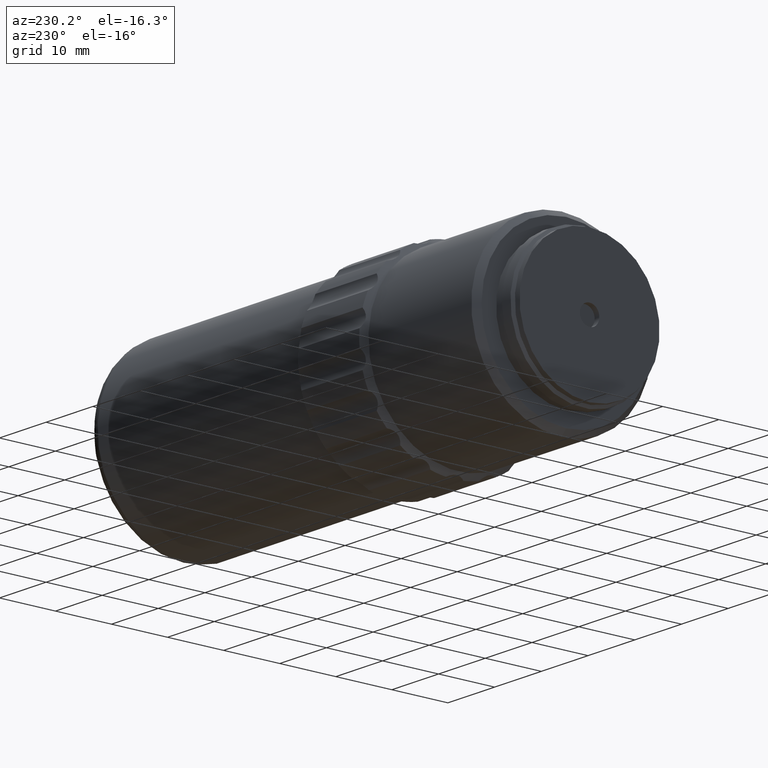
[diagram: clean part render]
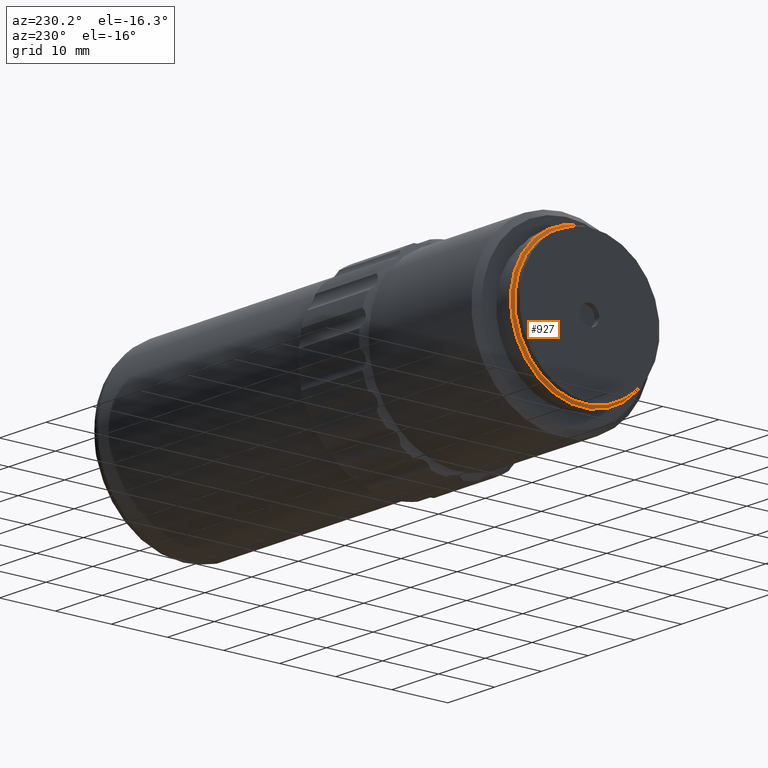
[diagram: same view with one face highlighted and labeled with its STEP entity id]
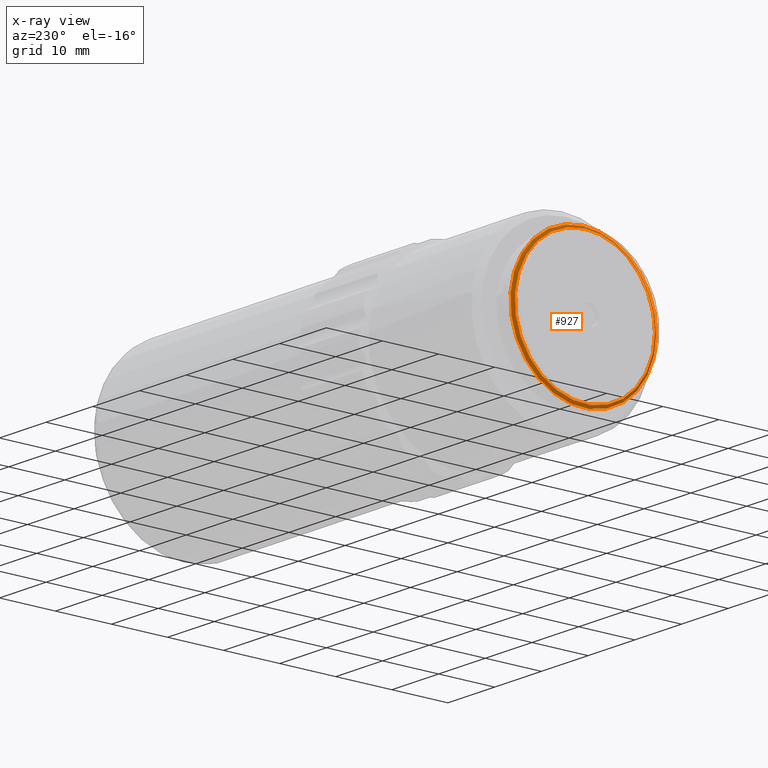
[diagram: x-ray of the same camera — body ghosted, the highlighted face saturated]
A machine part, auxiliary view. The second image highlights one B-rep face of the part: STEP entity #927.
The next image is the same camera in x-ray: the body ghosted, the highlighted face saturated — about 0% of this face is hidden behind the body in this view.
In plain terms, the highlighted conical surface has half-angle 55 deg.
Its self-contained STEP definition (entity closure, byte-faithful):
#33 = CIRCLE ( 'NONE', #1288, 12.49999999999999645 ) ;
#109 = CONICAL_SURFACE ( 'NONE', #933, 12.99999999999999822, 0.9599310885968810325 ) ;
#118 = ORIENTED_EDGE ( 'NONE', *, *, #1295, .F. ) ;
#354 = EDGE_CURVE ( 'NONE', #1332, #1332, #33, .T. ) ;
#366 = DIRECTION ( 'NONE',  ( 1.000000000000000000, -0.000000000000000000, -0.000000000000000000 ) ) ;
#368 = DIRECTION ( 'NONE',  ( 0.000000000000000000, 0.000000000000000000, -1.000000000000000000 ) ) ;
#377 = CARTESIAN_POINT ( 'NONE',  ( 8.687143769104855195, 46.02096199999999726, 0.000000000000000000 ) ) ;
#474 = AXIS2_PLACEMENT_3D ( 'NONE', #698, #366, #2093 ) ;
#519 = EDGE_LOOP ( 'NONE', ( #118 ) ) ;
#527 = FACE_OUTER_BOUND ( 'NONE', #519, .T. ) ;
#603 = ORIENTED_EDGE ( 'NONE', *, *, #354, .T. ) ;
#698 = CARTESIAN_POINT ( 'NONE',  ( 8.687143769104860525, 46.02096199999999726, 0.000000000000000000 ) ) ;
#788 = CARTESIAN_POINT ( 'NONE',  ( 8.337040000000000006, 46.02096199999999726, 0.000000000000000000 ) ) ;
#895 = DIRECTION ( 'NONE',  ( 1.000000000000000000, -0.000000000000000000, 0.000000000000000000 ) ) ;
#927 = ADVANCED_FACE ( 'NONE', ( #1924, #527 ), #109, .T. ) ;
#933 = AXIS2_PLACEMENT_3D ( 'NONE', #377, #895, #368 ) ;
#1037 = CIRCLE ( 'NONE', #474, 13.00000000000000178 ) ;
#1042 = VERTEX_POINT ( 'NONE', #1248 ) ;
#1115 = DIRECTION ( 'NONE',  ( 0.000000000000000000, -1.000000000000000000, 0.000000000000000000 ) ) ;
#1125 = DIRECTION ( 'NONE',  ( 1.000000000000000000, 0.000000000000000000, 0.000000000000000000 ) ) ;
#1248 = CARTESIAN_POINT ( 'NONE',  ( 8.687143769104860525, 46.02096199999999726, 13.00000000000000178 ) ) ;
#1288 = AXIS2_PLACEMENT_3D ( 'NONE', #788, #1125, #1115 ) ;
#1295 = EDGE_CURVE ( 'NONE', #1042, #1042, #1037, .T. ) ;
#1309 = CARTESIAN_POINT ( 'NONE',  ( 8.337040000000000006, 33.52096200000000437, 0.000000000000000000 ) ) ;
#1332 = VERTEX_POINT ( 'NONE', #1309 ) ;
#1369 = EDGE_LOOP ( 'NONE', ( #603 ) ) ;
#1924 = FACE_BOUND ( 'NONE', #1369, .T. ) ;
#2093 = DIRECTION ( 'NONE',  ( 0.000000000000000000, 0.000000000000000000, 1.000000000000000000 ) ) ;